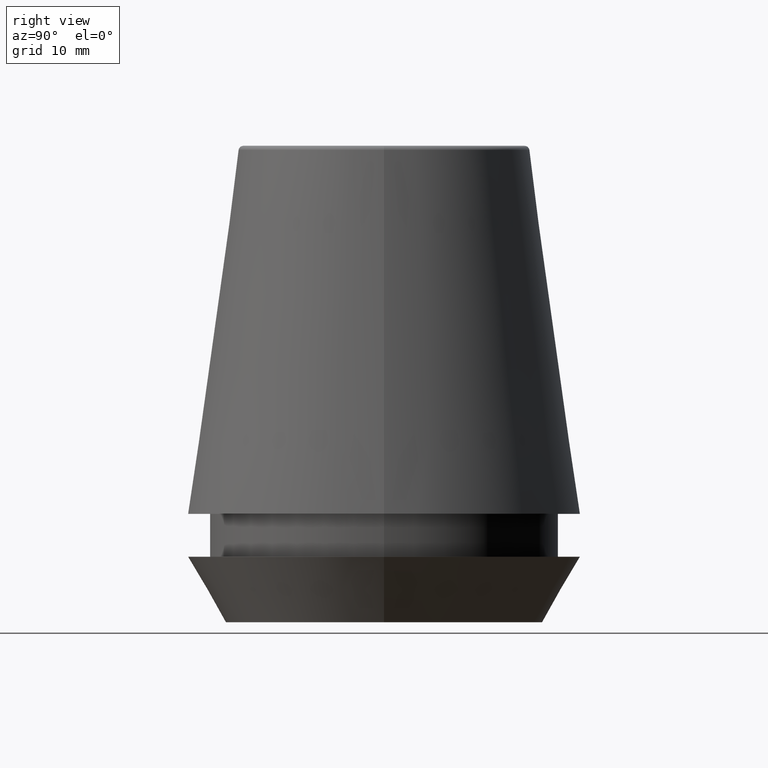
[diagram: clean part render]
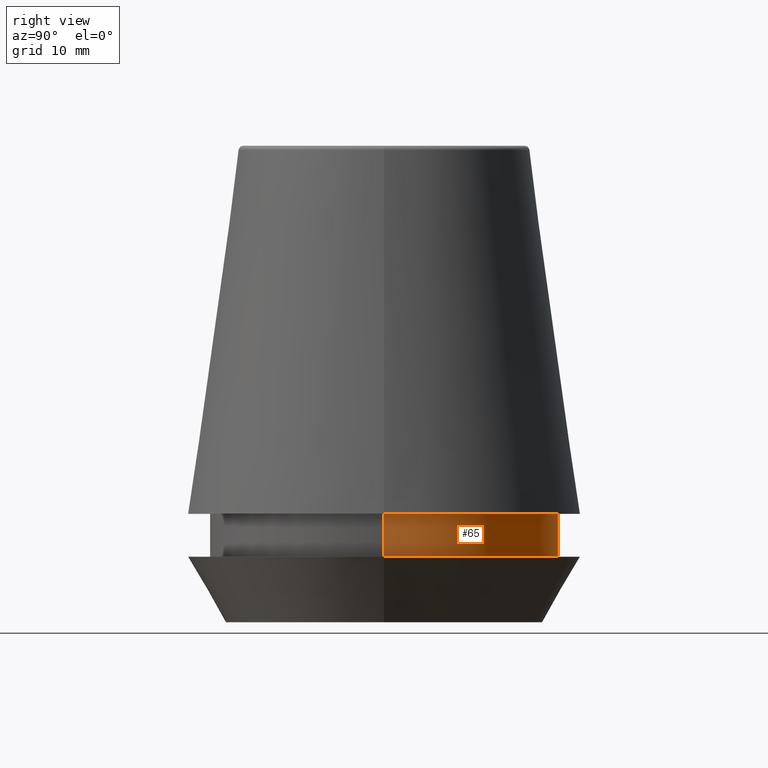
[diagram: same view with one face highlighted and labeled with its STEP entity id]
A machine part, right view. The second image highlights one B-rep face of the part: STEP entity #65.
In plain terms, the highlighted cylindrical surface (partial cylindrical patch) has radius 14.6 mm, axis along (-0, -0, 1).
Its self-contained STEP definition (entity closure, byte-faithful):
#4 = CYLINDRICAL_SURFACE ( 'NONE', #164, 14.60000000000000000 ) ;
#22 = VERTEX_POINT ( 'NONE', #49 ) ;
#34 = CARTESIAN_POINT ( 'NONE',  ( 0.0000000000000000000, 0.0000000000000000000, 101.8074564848000400 ) ) ;
#39 = ORIENTED_EDGE ( 'NONE', *, *, #316, .F. ) ;
#46 = EDGE_CURVE ( 'NONE', #96, #155, #353, .T. ) ;
#49 = CARTESIAN_POINT ( 'NONE',  ( -14.60000000000000000, 1.787984326755135800E-015, 9.099999999999997900 ) ) ;
#51 = DIRECTION ( 'NONE',  ( 1.000000000000000000, 0.0000000000000000000, 0.0000000000000000000 ) ) ;
#59 = AXIS2_PLACEMENT_3D ( 'NONE', #355, #152, #179 ) ;
#64 = AXIS2_PLACEMENT_3D ( 'NONE', #130, #327, #156 ) ;
#65 = ADVANCED_FACE ( 'NONE', ( #230 ), #4, .T. ) ;
#82 = VECTOR ( 'NONE', #343, 1000.000000000000000 ) ;
#88 = CIRCLE ( 'NONE', #64, 14.60000000000000000 ) ;
#96 = VERTEX_POINT ( 'NONE', #220 ) ;
#97 = EDGE_LOOP ( 'NONE', ( #112, #244, #39, #383 ) ) ;
#111 = CARTESIAN_POINT ( 'NONE',  ( 14.60000000000000000, 0.0000000000000000000, 101.8074564848000400 ) ) ;
#112 = ORIENTED_EDGE ( 'NONE', *, *, #210, .T. ) ;
#130 = CARTESIAN_POINT ( 'NONE',  ( 0.0000000000000000000, 0.0000000000000000000, 5.500000000000005300 ) ) ;
#152 = DIRECTION ( 'NONE',  ( -0.0000000000000000000, -0.0000000000000000000, 1.000000000000000000 ) ) ;
#155 = VERTEX_POINT ( 'NONE', #161 ) ;
#156 = DIRECTION ( 'NONE',  ( 1.000000000000000000, 0.0000000000000000000, 0.0000000000000000000 ) ) ;
#161 = CARTESIAN_POINT ( 'NONE',  ( 14.60000000000000000, 0.0000000000000000000, 9.099999999999997900 ) ) ;
#164 = AXIS2_PLACEMENT_3D ( 'NONE', #34, #170, #51 ) ;
#170 = DIRECTION ( 'NONE',  ( -0.0000000000000000000, -0.0000000000000000000, 1.000000000000000000 ) ) ;
#179 = DIRECTION ( 'NONE',  ( 1.000000000000000000, 0.0000000000000000000, 0.0000000000000000000 ) ) ;
#207 = DIRECTION ( 'NONE',  ( -0.0000000000000000000, -0.0000000000000000000, 1.000000000000000000 ) ) ;
#210 = EDGE_CURVE ( 'NONE', #96, #256, #88, .T. ) ;
#212 = EDGE_CURVE ( 'NONE', #256, #22, #382, .T. ) ;
#213 = CARTESIAN_POINT ( 'NONE',  ( -14.60000000000000000, 1.787984326755135800E-015, 101.8074564848000400 ) ) ;
#220 = CARTESIAN_POINT ( 'NONE',  ( 14.60000000000000000, 0.0000000000000000000, 5.500000000000005300 ) ) ;
#230 = FACE_OUTER_BOUND ( 'NONE', #97, .T. ) ;
#244 = ORIENTED_EDGE ( 'NONE', *, *, #212, .T. ) ;
#256 = VERTEX_POINT ( 'NONE', #330 ) ;
#278 = VECTOR ( 'NONE', #207, 1000.000000000000000 ) ;
#316 = EDGE_CURVE ( 'NONE', #155, #22, #385, .T. ) ;
#327 = DIRECTION ( 'NONE',  ( -0.0000000000000000000, -0.0000000000000000000, 1.000000000000000000 ) ) ;
#330 = CARTESIAN_POINT ( 'NONE',  ( -14.60000000000000000, 1.787984326755135800E-015, 5.500000000000005300 ) ) ;
#343 = DIRECTION ( 'NONE',  ( -0.0000000000000000000, -0.0000000000000000000, 1.000000000000000000 ) ) ;
#353 = LINE ( 'NONE', #111, #82 ) ;
#355 = CARTESIAN_POINT ( 'NONE',  ( 0.0000000000000000000, 0.0000000000000000000, 9.099999999999997900 ) ) ;
#382 = LINE ( 'NONE', #213, #278 ) ;
#383 = ORIENTED_EDGE ( 'NONE', *, *, #46, .F. ) ;
#385 = CIRCLE ( 'NONE', #59, 14.60000000000000000 ) ;